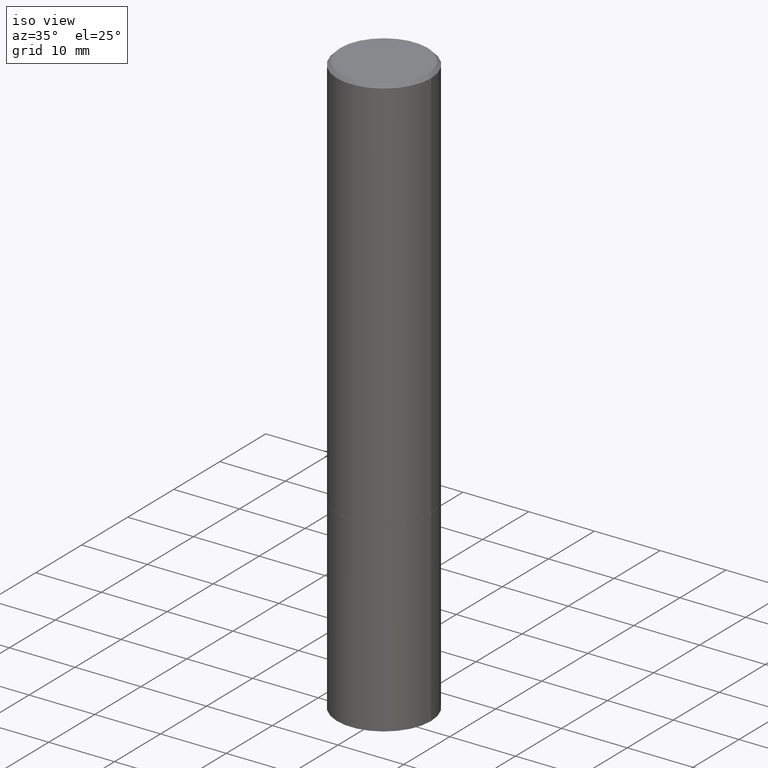
[diagram: clean part render]
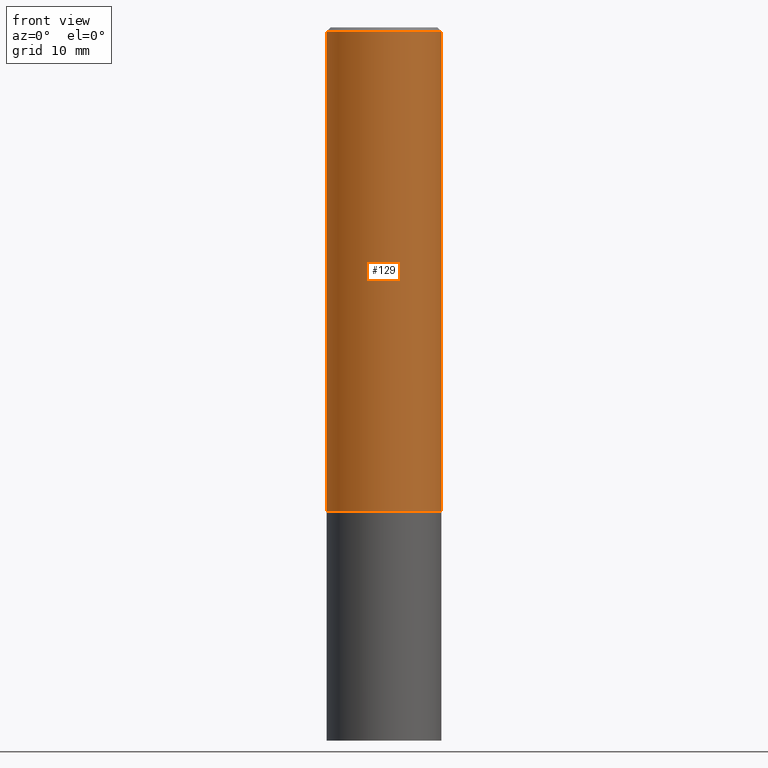
[diagram: tour spotlight — one face highlighted and labeled with its STEP entity id]
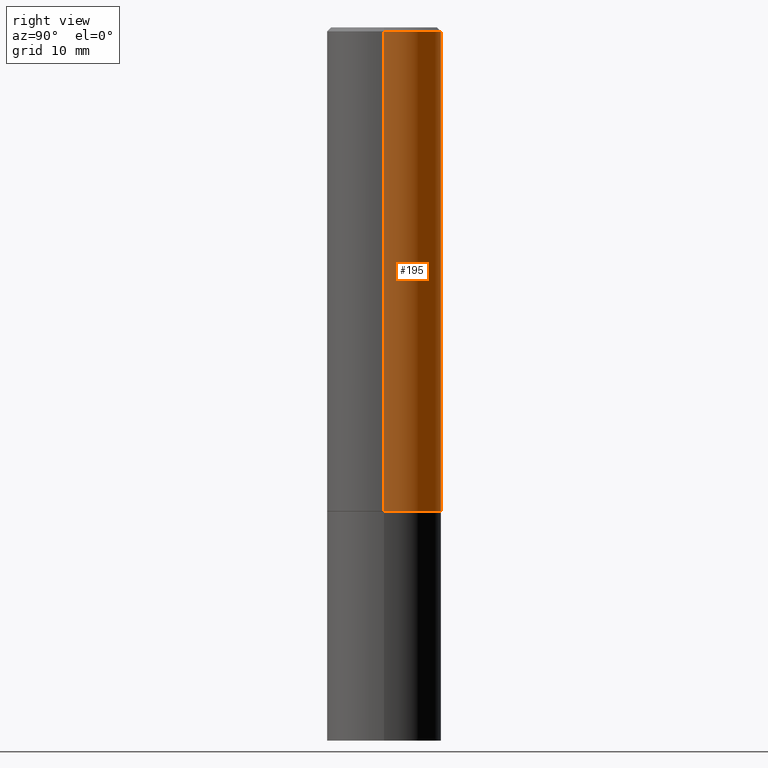
[diagram: tour spotlight — one face highlighted and labeled with its STEP entity id]
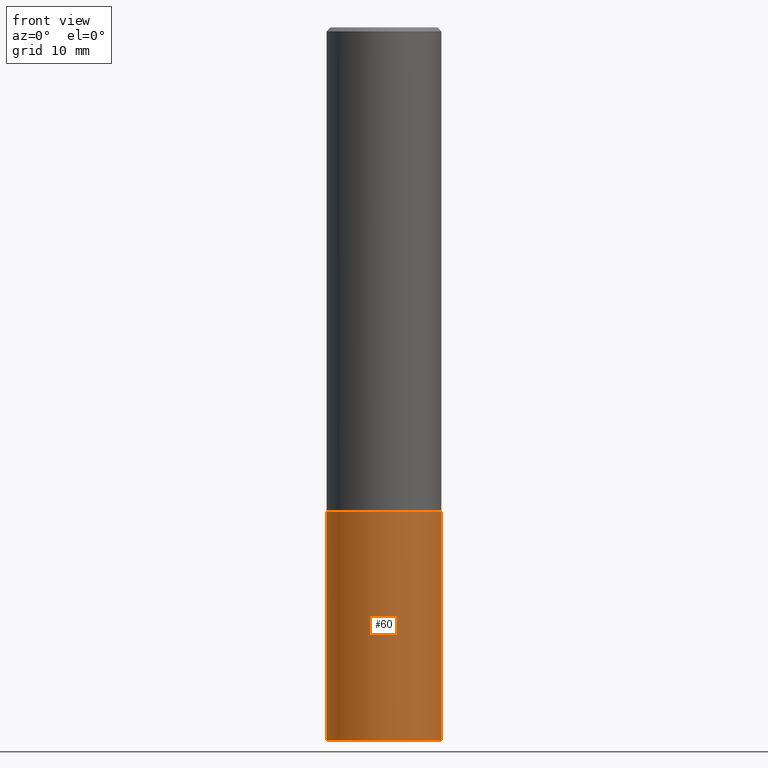
[diagram: tour spotlight — one face highlighted and labeled with its STEP entity id]
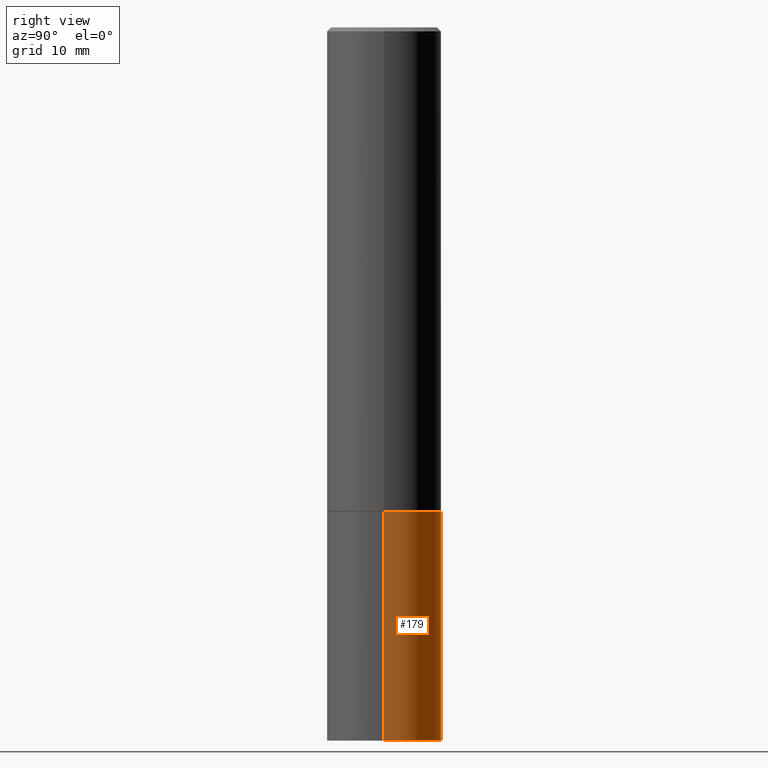
[diagram: tour spotlight — one face highlighted and labeled with its STEP entity id]
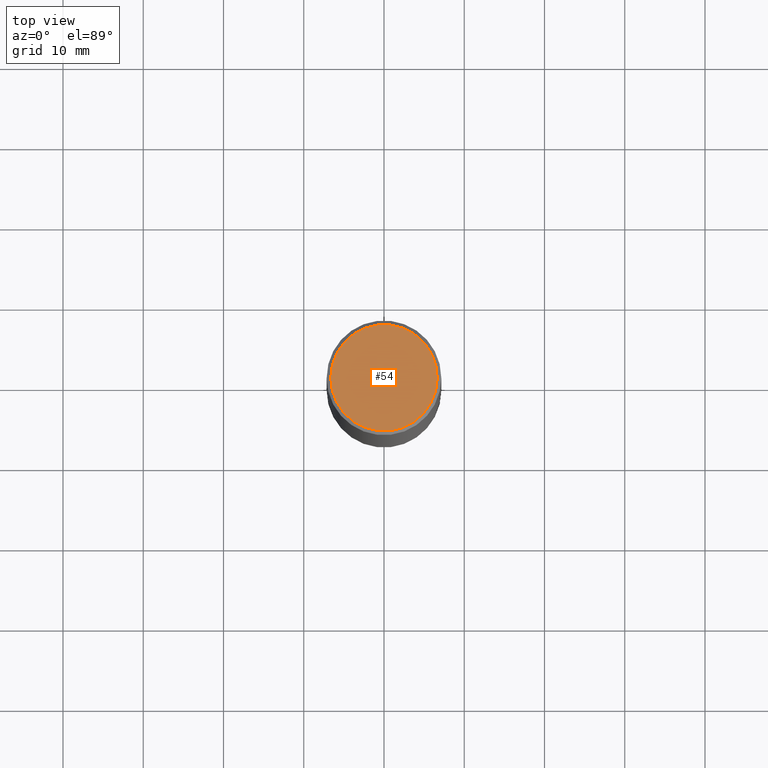
[diagram: tour spotlight — one face highlighted and labeled with its STEP entity id]
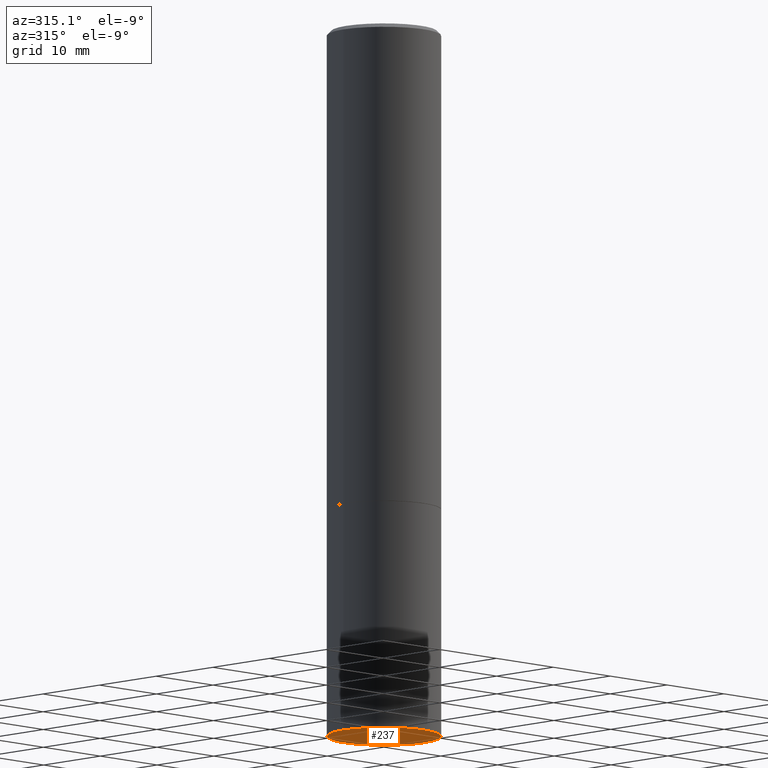
[diagram: tour spotlight — one face highlighted and labeled with its STEP entity id]
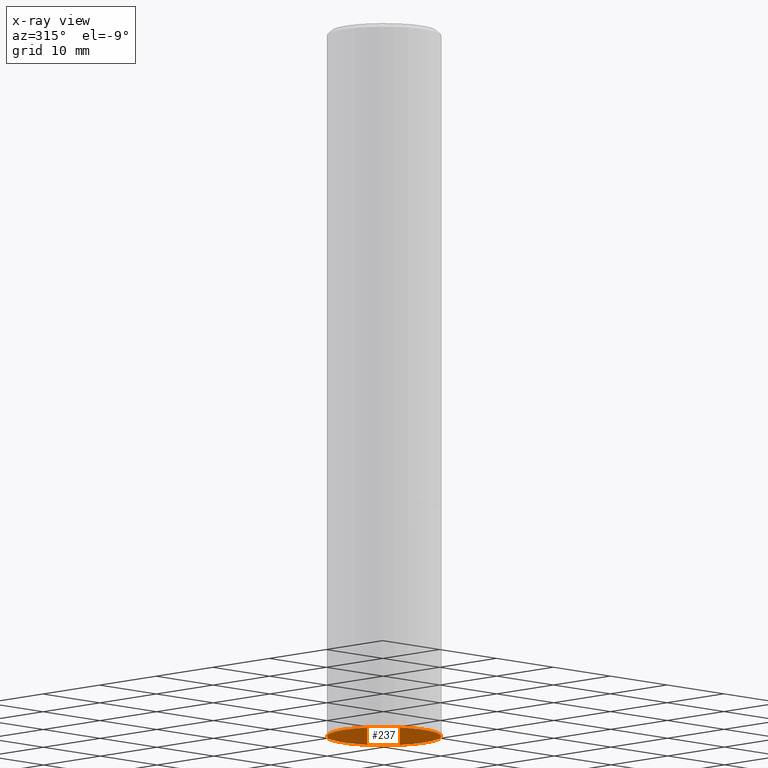
[diagram: x-ray of the same camera — body ghosted, this tour face saturated]
A machine part: a face-by-face anatomy tour. The part has 12 B-rep faces; the first image is the clean iso view, then the 6 largest visible faces are spotlighted one at a time (largest first), each with its STEP entity span.

Face 1 — front view, entity #129. In plain terms, the highlighted cylindrical surface (partial cylindrical patch) has radius 7.1437 mm, axis along (-0, 0, 1).
Definition (entity closure, byte-faithful):
#16 = AXIS2_PLACEMENT_3D ( 'NONE', #293, #150, #96 ) ;
#30 = EDGE_CURVE ( 'NONE', #55, #94, #172, .T. ) ;
#33 = AXIS2_PLACEMENT_3D ( 'NONE', #72, #355, #326 ) ;
#41 = FACE_OUTER_BOUND ( 'NONE', #268, .T. ) ;
#43 = DIRECTION ( 'NONE',  ( 1.000000000000000000, -6.982962677686268288E-15, 0.000000000000000000 ) ) ;
#47 = ORIENTED_EDGE ( 'NONE', *, *, #146, .T. ) ;
#48 = LINE ( 'NONE', #133, #283 ) ;
#55 = VERTEX_POINT ( 'NONE', #364 ) ;
#72 = CARTESIAN_POINT ( 'NONE',  ( 5.805542945883512693E-29, -8.288776698413625533E-15, -2.373999999999999222 ) ) ;
#81 = DIRECTION ( 'NONE',  ( -2.445468806185136877E-29, 3.491481338843145188E-15, 1.000000000000000000 ) ) ;
#83 = ORIENTED_EDGE ( 'NONE', *, *, #30, .F. ) ;
#91 = AXIS2_PLACEMENT_3D ( 'NONE', #180, #296, #43 ) ;
#94 = VERTEX_POINT ( 'NONE', #200 ) ;
#96 = DIRECTION ( 'NONE',  ( 1.000000000000000000, -6.982962677686266711E-15, 4.876176775795935793E-29 ) ) ;
#98 = ORIENTED_EDGE ( 'NONE', *, *, #220, .T. ) ;
#129 = ADVANCED_FACE ( 'NONE', ( #41 ), #168, .T. ) ;
#133 = CARTESIAN_POINT ( 'NONE',  ( -0.2812499999999998335, 1.998401444325280589E-15, -1.383450494134191428E-29 ) ) ;
#138 = CIRCLE ( 'NONE', #33, 0.2812500000000000555 ) ;
#139 = VECTOR ( 'NONE', #277, 39.37007874015748143 ) ;
#146 = EDGE_CURVE ( 'NONE', #331, #257, #138, .T. ) ;
#150 = DIRECTION ( 'NONE',  ( -2.445468806185136597E-29, 3.491481338843145583E-15, 1.000000000000000000 ) ) ;
#155 = EDGE_CURVE ( 'NONE', #331, #55, #48, .T. ) ;
#168 = CYLINDRICAL_SURFACE ( 'NONE', #16, 0.2812499999999998335 ) ;
#172 = CIRCLE ( 'NONE', #91, 0.2812499999999996114 ) ;
#180 = CARTESIAN_POINT ( 'NONE',  ( 4.890937612370292426E-31, -6.982962677686317493E-17, -0.02000000000000007674 ) ) ;
#200 = CARTESIAN_POINT ( 'NONE',  ( 0.2812499999999996114, -1.999344688650103789E-15, -0.02000000000000007674 ) ) ;
#220 = EDGE_CURVE ( 'NONE', #257, #94, #347, .T. ) ;
#253 = CARTESIAN_POINT ( 'NONE',  ( -0.2812500000000000000, -2.180901718269959487E-15, -2.373999999999999222 ) ) ;
#257 = VERTEX_POINT ( 'NONE', #270 ) ;
#268 = EDGE_LOOP ( 'NONE', ( #311, #47, #98, #83 ) ) ;
#270 = CARTESIAN_POINT ( 'NONE',  ( 0.2812500000000000555, -1.025273495151288883E-14, -2.373999999999999222 ) ) ;
#277 = DIRECTION ( 'NONE',  ( -2.445468806185136877E-29, 3.491481338843145188E-15, 1.000000000000000000 ) ) ;
#283 = VECTOR ( 'NONE', #81, 39.37007874015748143 ) ;
#293 = CARTESIAN_POINT ( 'NONE',  ( 0.000000000000000000, 0.000000000000000000, 0.000000000000000000 ) ) ;
#296 = DIRECTION ( 'NONE',  ( -2.445468806185136597E-29, 3.491481338843145583E-15, 1.000000000000000000 ) ) ;
#302 = CARTESIAN_POINT ( 'NONE',  ( 0.2812499999999998335, -1.963958253099261329E-15, 1.371424718192606171E-29 ) ) ;
#311 = ORIENTED_EDGE ( 'NONE', *, *, #155, .F. ) ;
#326 = DIRECTION ( 'NONE',  ( 1.000000000000000000, -6.982962677686268288E-15, 0.000000000000000000 ) ) ;
#331 = VERTEX_POINT ( 'NONE', #253 ) ;
#347 = LINE ( 'NONE', #302, #139 ) ;
#355 = DIRECTION ( 'NONE',  ( -2.445468806185136597E-29, 3.491481338843145583E-15, 1.000000000000000000 ) ) ;
#364 = CARTESIAN_POINT ( 'NONE',  ( -0.2812499999999996114, 1.894128626322396848E-15, -0.02000000000000007674 ) ) ;

Face 2 — right view, entity #195. In plain terms, the highlighted cylindrical surface (partial cylindrical patch) has radius 7.1437 mm, axis along (-0, 0, 1).
Definition (entity closure, byte-faithful):
#3 = ORIENTED_EDGE ( 'NONE', *, *, #342, .F. ) ;
#12 = CYLINDRICAL_SURFACE ( 'NONE', #350, 0.2812499999999998335 ) ;
#48 = LINE ( 'NONE', #133, #283 ) ;
#55 = VERTEX_POINT ( 'NONE', #364 ) ;
#64 = CIRCLE ( 'NONE', #145, 0.2812499999999996114 ) ;
#71 = ORIENTED_EDGE ( 'NONE', *, *, #199, .T. ) ;
#81 = DIRECTION ( 'NONE',  ( -2.445468806185136877E-29, 3.491481338843145188E-15, 1.000000000000000000 ) ) ;
#86 = CIRCLE ( 'NONE', #290, 0.2812500000000000555 ) ;
#94 = VERTEX_POINT ( 'NONE', #200 ) ;
#100 = CARTESIAN_POINT ( 'NONE',  ( 0.000000000000000000, 0.000000000000000000, 0.000000000000000000 ) ) ;
#103 = CARTESIAN_POINT ( 'NONE',  ( 5.805542945883512693E-29, -8.288776698413625533E-15, -2.373999999999999222 ) ) ;
#109 = DIRECTION ( 'NONE',  ( -2.445468806185136597E-29, 3.491481338843145583E-15, 1.000000000000000000 ) ) ;
#112 = CARTESIAN_POINT ( 'NONE',  ( 4.890937612370292426E-31, -6.982962677686317493E-17, -0.02000000000000007674 ) ) ;
#133 = CARTESIAN_POINT ( 'NONE',  ( -0.2812499999999998335, 1.998401444325280589E-15, -1.383450494134191428E-29 ) ) ;
#135 = DIRECTION ( 'NONE',  ( -2.445468806185136597E-29, 3.491481338843145583E-15, 1.000000000000000000 ) ) ;
#139 = VECTOR ( 'NONE', #277, 39.37007874015748143 ) ;
#145 = AXIS2_PLACEMENT_3D ( 'NONE', #112, #330, #285 ) ;
#155 = EDGE_CURVE ( 'NONE', #331, #55, #48, .T. ) ;
#160 = DIRECTION ( 'NONE',  ( 1.000000000000000000, -6.982962677686268288E-15, 0.000000000000000000 ) ) ;
#195 = ADVANCED_FACE ( 'NONE', ( #278 ), #12, .T. ) ;
#199 = EDGE_CURVE ( 'NONE', #257, #331, #86, .T. ) ;
#200 = CARTESIAN_POINT ( 'NONE',  ( 0.2812499999999996114, -1.999344688650103789E-15, -0.02000000000000007674 ) ) ;
#220 = EDGE_CURVE ( 'NONE', #257, #94, #347, .T. ) ;
#228 = ORIENTED_EDGE ( 'NONE', *, *, #220, .F. ) ;
#253 = CARTESIAN_POINT ( 'NONE',  ( -0.2812500000000000000, -2.180901718269959487E-15, -2.373999999999999222 ) ) ;
#255 = EDGE_LOOP ( 'NONE', ( #71, #313, #3, #228 ) ) ;
#257 = VERTEX_POINT ( 'NONE', #270 ) ;
#270 = CARTESIAN_POINT ( 'NONE',  ( 0.2812500000000000555, -1.025273495151288883E-14, -2.373999999999999222 ) ) ;
#277 = DIRECTION ( 'NONE',  ( -2.445468806185136877E-29, 3.491481338843145188E-15, 1.000000000000000000 ) ) ;
#278 = FACE_OUTER_BOUND ( 'NONE', #255, .T. ) ;
#283 = VECTOR ( 'NONE', #81, 39.37007874015748143 ) ;
#285 = DIRECTION ( 'NONE',  ( 1.000000000000000000, -6.982962677686268288E-15, 0.000000000000000000 ) ) ;
#290 = AXIS2_PLACEMENT_3D ( 'NONE', #103, #109, #160 ) ;
#302 = CARTESIAN_POINT ( 'NONE',  ( 0.2812499999999998335, -1.963958253099261329E-15, 1.371424718192606171E-29 ) ) ;
#313 = ORIENTED_EDGE ( 'NONE', *, *, #155, .T. ) ;
#330 = DIRECTION ( 'NONE',  ( -2.445468806185136597E-29, 3.491481338843145583E-15, 1.000000000000000000 ) ) ;
#331 = VERTEX_POINT ( 'NONE', #253 ) ;
#342 = EDGE_CURVE ( 'NONE', #94, #55, #64, .T. ) ;
#347 = LINE ( 'NONE', #302, #139 ) ;
#350 = AXIS2_PLACEMENT_3D ( 'NONE', #100, #135, #358 ) ;
#358 = DIRECTION ( 'NONE',  ( 1.000000000000000000, -6.982962677686266711E-15, 4.876176775795935793E-29 ) ) ;
#364 = CARTESIAN_POINT ( 'NONE',  ( -0.2812499999999996114, 1.894128626322396848E-15, -0.02000000000000007674 ) ) ;

Face 3 — front view, entity #60. In plain terms, the highlighted cylindrical surface (partial cylindrical patch) has radius 7.1437 mm, axis along (-0, 0, 1).
Definition (entity closure, byte-faithful):
#13 = EDGE_CURVE ( 'NONE', #205, #23, #57, .T. ) ;
#14 = CARTESIAN_POINT ( 'NONE',  ( 0.2812500000000000000, -1.025622643285173184E-14, -2.374999999999999556 ) ) ;
#23 = VERTEX_POINT ( 'NONE', #208 ) ;
#57 = CIRCLE ( 'NONE', #332, 0.2812500000000000000 ) ;
#59 = LINE ( 'NONE', #282, #114 ) ;
#60 = ADVANCED_FACE ( 'NONE', ( #308 ), #314, .T. ) ;
#66 = ORIENTED_EDGE ( 'NONE', *, *, #13, .T. ) ;
#68 = DIRECTION ( 'NONE',  ( -2.445468806185136597E-29, 3.491481338843145583E-15, 1.000000000000000000 ) ) ;
#70 = DIRECTION ( 'NONE',  ( 1.000000000000000000, -6.982962677686269866E-15, 0.000000000000000000 ) ) ;
#95 = CARTESIAN_POINT ( 'NONE',  ( 8.559140821647976968E-29, -1.222018468595100934E-14, -3.500000000000000000 ) ) ;
#105 = AXIS2_PLACEMENT_3D ( 'NONE', #343, #68, #233 ) ;
#114 = VECTOR ( 'NONE', #166, 39.37007874015748143 ) ;
#127 = LINE ( 'NONE', #243, #337 ) ;
#141 = DIRECTION ( 'NONE',  ( 1.000000000000000000, -6.982962677686269866E-15, 0.000000000000000000 ) ) ;
#144 = ORIENTED_EDGE ( 'NONE', *, *, #335, .T. ) ;
#147 = VERTEX_POINT ( 'NONE', #211 ) ;
#157 = AXIS2_PLACEMENT_3D ( 'NONE', #229, #227, #141 ) ;
#166 = DIRECTION ( 'NONE',  ( -2.445468806185136877E-29, 3.491481338843145188E-15, 1.000000000000000000 ) ) ;
#187 = ORIENTED_EDGE ( 'NONE', *, *, #264, .F. ) ;
#204 = DIRECTION ( 'NONE',  ( -2.445468806185136597E-29, 3.491481338843145583E-15, 1.000000000000000000 ) ) ;
#205 = VERTEX_POINT ( 'NONE', #221 ) ;
#208 = CARTESIAN_POINT ( 'NONE',  ( 0.2812500000000000000, -1.418414293905027264E-14, -3.500000000000000000 ) ) ;
#211 = CARTESIAN_POINT ( 'NONE',  ( -0.2812500000000000000, -8.257824988526456379E-15, -2.374999999999999556 ) ) ;
#221 = CARTESIAN_POINT ( 'NONE',  ( -0.2812500000000000000, -8.257824988526456379E-15, -3.500000000000000000 ) ) ;
#227 = DIRECTION ( 'NONE',  ( -2.445468806185136597E-29, 3.491481338843145583E-15, 1.000000000000000000 ) ) ;
#229 = CARTESIAN_POINT ( 'NONE',  ( 5.807988414689698296E-29, -8.292268179752468540E-15, -2.374999999999999556 ) ) ;
#233 = DIRECTION ( 'NONE',  ( 1.000000000000000000, -6.982962677686266711E-15, 4.876176775795935793E-29 ) ) ;
#243 = CARTESIAN_POINT ( 'NONE',  ( -0.2812500000000000000, 1.998401444325281773E-15, -1.383450494134192269E-29 ) ) ;
#258 = VERTEX_POINT ( 'NONE', #14 ) ;
#264 = EDGE_CURVE ( 'NONE', #205, #147, #127, .T. ) ;
#282 = CARTESIAN_POINT ( 'NONE',  ( 0.2812500000000000000, -1.963958253099262512E-15, 1.371424718192607012E-29 ) ) ;
#295 = CIRCLE ( 'NONE', #157, 0.2812500000000000000 ) ;
#301 = EDGE_CURVE ( 'NONE', #147, #258, #295, .T. ) ;
#308 = FACE_OUTER_BOUND ( 'NONE', #345, .T. ) ;
#312 = ORIENTED_EDGE ( 'NONE', *, *, #301, .F. ) ;
#314 = CYLINDRICAL_SURFACE ( 'NONE', #105, 0.2812500000000000000 ) ;
#332 = AXIS2_PLACEMENT_3D ( 'NONE', #95, #204, #70 ) ;
#335 = EDGE_CURVE ( 'NONE', #23, #258, #59, .T. ) ;
#337 = VECTOR ( 'NONE', #352, 39.37007874015748143 ) ;
#343 = CARTESIAN_POINT ( 'NONE',  ( 0.000000000000000000, 0.000000000000000000, 0.000000000000000000 ) ) ;
#345 = EDGE_LOOP ( 'NONE', ( #187, #66, #144, #312 ) ) ;
#352 = DIRECTION ( 'NONE',  ( -2.445468806185136877E-29, 3.491481338843145188E-15, 1.000000000000000000 ) ) ;

Face 4 — right view, entity #179. In plain terms, the highlighted cylindrical surface (partial cylindrical patch) has radius 7.1437 mm, axis along (-0, 0, 1).
Definition (entity closure, byte-faithful):
#14 = CARTESIAN_POINT ( 'NONE',  ( 0.2812500000000000000, -1.025622643285173184E-14, -2.374999999999999556 ) ) ;
#20 = DIRECTION ( 'NONE',  ( -2.445468806185136597E-29, 3.491481338843145583E-15, 1.000000000000000000 ) ) ;
#23 = VERTEX_POINT ( 'NONE', #208 ) ;
#39 = ORIENTED_EDGE ( 'NONE', *, *, #264, .T. ) ;
#52 = CARTESIAN_POINT ( 'NONE',  ( 8.559140821647976968E-29, -1.222018468595100934E-14, -3.500000000000000000 ) ) ;
#59 = LINE ( 'NONE', #282, #114 ) ;
#69 = AXIS2_PLACEMENT_3D ( 'NONE', #52, #88, #256 ) ;
#79 = FACE_OUTER_BOUND ( 'NONE', #344, .T. ) ;
#88 = DIRECTION ( 'NONE',  ( -2.445468806185136597E-29, 3.491481338843145583E-15, 1.000000000000000000 ) ) ;
#93 = AXIS2_PLACEMENT_3D ( 'NONE', #118, #235, #218 ) ;
#106 = CARTESIAN_POINT ( 'NONE',  ( 0.000000000000000000, 0.000000000000000000, 0.000000000000000000 ) ) ;
#114 = VECTOR ( 'NONE', #166, 39.37007874015748143 ) ;
#118 = CARTESIAN_POINT ( 'NONE',  ( 5.807988414689698296E-29, -8.292268179752468540E-15, -2.374999999999999556 ) ) ;
#127 = LINE ( 'NONE', #243, #337 ) ;
#136 = ORIENTED_EDGE ( 'NONE', *, *, #143, .F. ) ;
#143 = EDGE_CURVE ( 'NONE', #258, #147, #202, .T. ) ;
#147 = VERTEX_POINT ( 'NONE', #211 ) ;
#166 = DIRECTION ( 'NONE',  ( -2.445468806185136877E-29, 3.491481338843145188E-15, 1.000000000000000000 ) ) ;
#173 = CIRCLE ( 'NONE', #69, 0.2812500000000000000 ) ;
#179 = ADVANCED_FACE ( 'NONE', ( #79 ), #328, .T. ) ;
#202 = CIRCLE ( 'NONE', #93, 0.2812500000000000000 ) ;
#205 = VERTEX_POINT ( 'NONE', #221 ) ;
#207 = AXIS2_PLACEMENT_3D ( 'NONE', #106, #20, #275 ) ;
#208 = CARTESIAN_POINT ( 'NONE',  ( 0.2812500000000000000, -1.418414293905027264E-14, -3.500000000000000000 ) ) ;
#211 = CARTESIAN_POINT ( 'NONE',  ( -0.2812500000000000000, -8.257824988526456379E-15, -2.374999999999999556 ) ) ;
#218 = DIRECTION ( 'NONE',  ( 1.000000000000000000, -6.982962677686269866E-15, 0.000000000000000000 ) ) ;
#221 = CARTESIAN_POINT ( 'NONE',  ( -0.2812500000000000000, -8.257824988526456379E-15, -3.500000000000000000 ) ) ;
#231 = ORIENTED_EDGE ( 'NONE', *, *, #335, .F. ) ;
#235 = DIRECTION ( 'NONE',  ( -2.445468806185136597E-29, 3.491481338843145583E-15, 1.000000000000000000 ) ) ;
#243 = CARTESIAN_POINT ( 'NONE',  ( -0.2812500000000000000, 1.998401444325281773E-15, -1.383450494134192269E-29 ) ) ;
#256 = DIRECTION ( 'NONE',  ( 1.000000000000000000, -6.982962677686269866E-15, 0.000000000000000000 ) ) ;
#258 = VERTEX_POINT ( 'NONE', #14 ) ;
#264 = EDGE_CURVE ( 'NONE', #205, #147, #127, .T. ) ;
#275 = DIRECTION ( 'NONE',  ( 1.000000000000000000, -6.982962677686266711E-15, 4.876176775795935793E-29 ) ) ;
#282 = CARTESIAN_POINT ( 'NONE',  ( 0.2812500000000000000, -1.963958253099262512E-15, 1.371424718192607012E-29 ) ) ;
#306 = EDGE_CURVE ( 'NONE', #23, #205, #173, .T. ) ;
#328 = CYLINDRICAL_SURFACE ( 'NONE', #207, 0.2812500000000000000 ) ;
#335 = EDGE_CURVE ( 'NONE', #23, #258, #59, .T. ) ;
#337 = VECTOR ( 'NONE', #352, 39.37007874015748143 ) ;
#344 = EDGE_LOOP ( 'NONE', ( #366, #39, #136, #231 ) ) ;
#352 = DIRECTION ( 'NONE',  ( -2.445468806185136877E-29, 3.491481338843145188E-15, 1.000000000000000000 ) ) ;
#366 = ORIENTED_EDGE ( 'NONE', *, *, #306, .T. ) ;

Face 5 — top view, entity #54. In plain terms, the highlighted planar face has unit normal (0, -0, -1).
Definition (entity closure, byte-faithful):
#2 = EDGE_CURVE ( 'NONE', #309, #238, #357, .T. ) ;
#54 = ADVANCED_FACE ( 'NONE', ( #327 ), #111, .F. ) ;
#61 = ORIENTED_EDGE ( 'NONE', *, *, #87, .T. ) ;
#85 = DIRECTION ( 'NONE',  ( -1.000000000000000000, 6.982962677686265922E-15, -4.876176775795935793E-29 ) ) ;
#87 = EDGE_CURVE ( 'NONE', #238, #309, #279, .T. ) ;
#111 = PLANE ( 'NONE',  #156 ) ;
#116 = AXIS2_PLACEMENT_3D ( 'NONE', #201, #318, #175 ) ;
#132 = DIRECTION ( 'NONE',  ( -2.445468806185136597E-29, 3.491481338843145583E-15, 1.000000000000000000 ) ) ;
#137 = CARTESIAN_POINT ( 'NONE',  ( -0.2612499999999995937, 1.859213812933965593E-15, -1.288019758893701069E-29 ) ) ;
#156 = AXIS2_PLACEMENT_3D ( 'NONE', #329, #193, #85 ) ;
#158 = CARTESIAN_POINT ( 'NONE',  ( 0.2612499999999995937, -1.895824895283956809E-15, 1.300802449975685690E-29 ) ) ;
#174 = EDGE_LOOP ( 'NONE', ( #362, #61 ) ) ;
#175 = DIRECTION ( 'NONE',  ( 1.000000000000000000, -6.982962677686266711E-15, 4.876176775795935793E-29 ) ) ;
#193 = DIRECTION ( 'NONE',  ( 2.438088387897960049E-29, -3.491481338843145188E-15, -1.000000000000000000 ) ) ;
#201 = CARTESIAN_POINT ( 'NONE',  ( 0.000000000000000000, 0.000000000000000000, 0.000000000000000000 ) ) ;
#206 = AXIS2_PLACEMENT_3D ( 'NONE', #273, #132, #354 ) ;
#238 = VERTEX_POINT ( 'NONE', #158 ) ;
#273 = CARTESIAN_POINT ( 'NONE',  ( 0.000000000000000000, 0.000000000000000000, 0.000000000000000000 ) ) ;
#279 = CIRCLE ( 'NONE', #116, 0.2612499999999995937 ) ;
#309 = VERTEX_POINT ( 'NONE', #137 ) ;
#318 = DIRECTION ( 'NONE',  ( -2.445468806185136597E-29, 3.491481338843145583E-15, 1.000000000000000000 ) ) ;
#327 = FACE_OUTER_BOUND ( 'NONE', #174, .T. ) ;
#329 = CARTESIAN_POINT ( 'NONE',  ( 1.824298999545534338E-15, 0.2612499999999995937, -9.121494997727705218E-16 ) ) ;
#354 = DIRECTION ( 'NONE',  ( 1.000000000000000000, -6.982962677686266711E-15, 4.876176775795935793E-29 ) ) ;
#357 = CIRCLE ( 'NONE', #206, 0.2612499999999995937 ) ;
#362 = ORIENTED_EDGE ( 'NONE', *, *, #2, .T. ) ;

Face 6 — auxiliary view, entity #237. An x-ray twin of the same camera follows (body ghosted, this face saturated) — the face is partly hidden behind the body. In plain terms, the highlighted planar face has unit normal (0, -0, -1).
Definition (entity closure, byte-faithful):
#1 = AXIS2_PLACEMENT_3D ( 'NONE', #297, #76, #153 ) ;
#9 = ORIENTED_EDGE ( 'NONE', *, *, #13, .F. ) ;
#10 = ORIENTED_EDGE ( 'NONE', *, *, #306, .F. ) ;
#13 = EDGE_CURVE ( 'NONE', #205, #23, #57, .T. ) ;
#18 = FACE_OUTER_BOUND ( 'NONE', #346, .T. ) ;
#23 = VERTEX_POINT ( 'NONE', #208 ) ;
#52 = CARTESIAN_POINT ( 'NONE',  ( 8.559140821647976968E-29, -1.222018468595100934E-14, -3.500000000000000000 ) ) ;
#57 = CIRCLE ( 'NONE', #332, 0.2812500000000000000 ) ;
#69 = AXIS2_PLACEMENT_3D ( 'NONE', #52, #88, #256 ) ;
#70 = DIRECTION ( 'NONE',  ( 1.000000000000000000, -6.982962677686269866E-15, 0.000000000000000000 ) ) ;
#76 = DIRECTION ( 'NONE',  ( 2.438088387897960049E-29, -3.491481338843145188E-15, -1.000000000000000000 ) ) ;
#88 = DIRECTION ( 'NONE',  ( -2.445468806185136597E-29, 3.491481338843145583E-15, 1.000000000000000000 ) ) ;
#95 = CARTESIAN_POINT ( 'NONE',  ( 8.559140821647976968E-29, -1.222018468595100934E-14, -3.500000000000000000 ) ) ;
#153 = DIRECTION ( 'NONE',  ( -1.000000000000000000, 6.982962677686265922E-15, -4.876176775795935793E-29 ) ) ;
#173 = CIRCLE ( 'NONE', #69, 0.2812500000000000000 ) ;
#204 = DIRECTION ( 'NONE',  ( -2.445468806185136597E-29, 3.491481338843145583E-15, 1.000000000000000000 ) ) ;
#205 = VERTEX_POINT ( 'NONE', #221 ) ;
#208 = CARTESIAN_POINT ( 'NONE',  ( 0.2812500000000000000, -1.418414293905027264E-14, -3.500000000000000000 ) ) ;
#213 = PLANE ( 'NONE',  #1 ) ;
#221 = CARTESIAN_POINT ( 'NONE',  ( -0.2812500000000000000, -8.257824988526456379E-15, -3.500000000000000000 ) ) ;
#237 = ADVANCED_FACE ( 'NONE', ( #18 ), #213, .T. ) ;
#256 = DIRECTION ( 'NONE',  ( 1.000000000000000000, -6.982962677686269866E-15, 0.000000000000000000 ) ) ;
#297 = CARTESIAN_POINT ( 'NONE',  ( 1.963958253099348104E-15, 0.2812499999999877875, -3.500000000000000888 ) ) ;
#306 = EDGE_CURVE ( 'NONE', #23, #205, #173, .T. ) ;
#332 = AXIS2_PLACEMENT_3D ( 'NONE', #95, #204, #70 ) ;
#346 = EDGE_LOOP ( 'NONE', ( #10, #9 ) ) ;